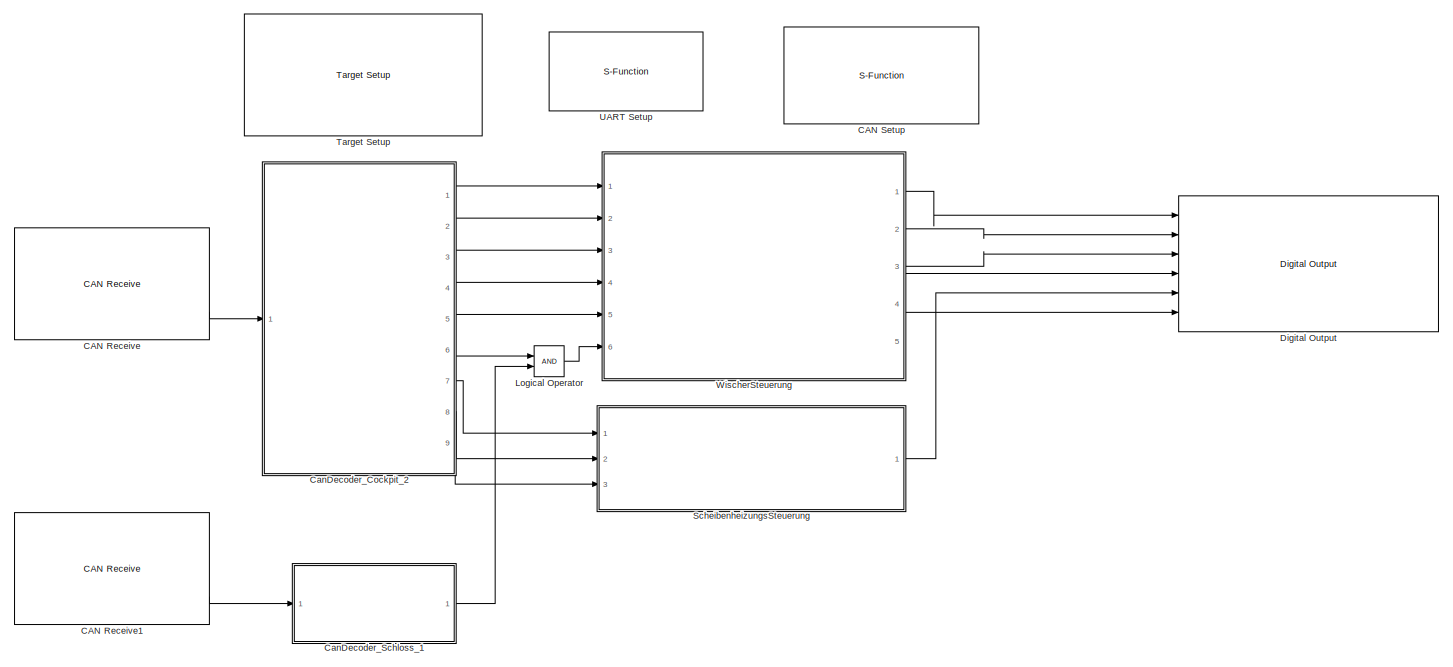
[diagram: root canvas - part 1/2, full width, middle band]
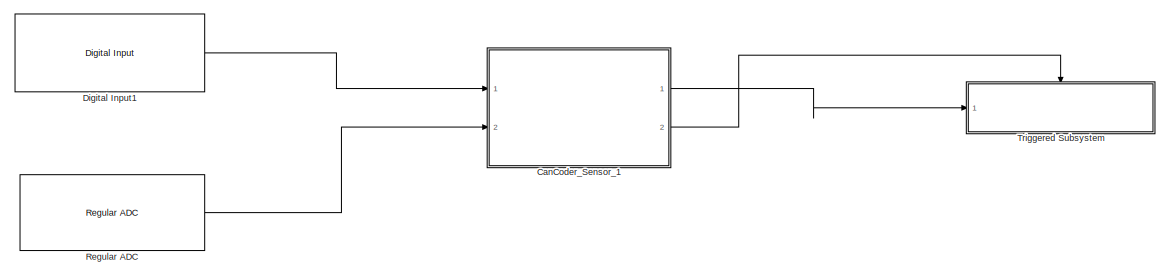
[diagram: root canvas - part 2/2, full width, bottom band]
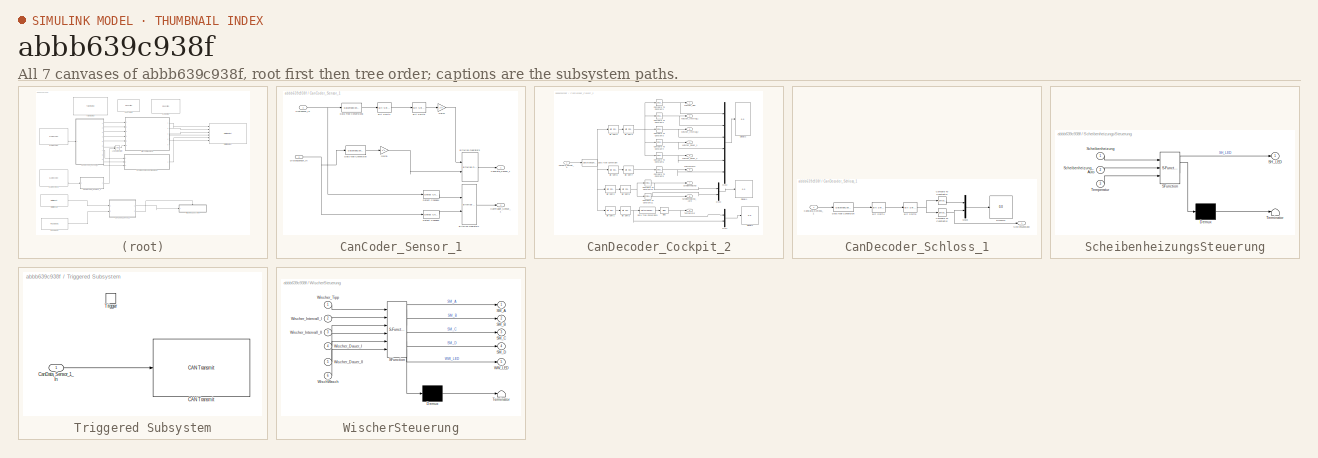
[diagram: thumbnail index - all 7 canvases of the model, root first then tree order]
MODEL slx_abbb639c938f
KIND model
CONFIG AbsTol = auto
CONFIG EnableMultiTasking = off
CONFIG FixedStep = auto
CONFIG MaxStep = auto
CONFIG MinStep = auto
CONFIG PreLoadFcn = waijung.modelPreload; % Required for working with Waijung Blockset. Do not remove.
CONFIG RelTol = 1e-3
CONFIG SampleTimeConstraint = Unconstrained
CONFIG Solver = FixedStepAuto
CONFIG SolverName = FixedStepAuto
CONFIG StartTime = 0.0
CONFIG StopTime = 10.0
BLOCK [Reference] CAN Receive  REF=stm32f4_canbus_lib/CAN Receive
  Ports = [0, 3]
  SourceBlock = stm32f4_canbus_lib/CAN Receive
  SourceType = stm32f4_can
BLOCK [Reference] CAN Receive1  REF=stm32f4_canbus_lib/CAN Receive
  Ports = [0, 3]
  SourceBlock = stm32f4_canbus_lib/CAN Receive
  SourceType = stm32f4_can
BLOCK [S-Function] CAN Setup
  EnableBusSupport = off
  FunctionName = stm32f4_can
  Parameters = conf,canmodule,0,inputarray,outputarray,'','',confstr,sampletime,sampletimestr,blockid
  Ports = []
  SFcnIsStateOwnerBlock = off
  SFunctionDeploymentMode = off
BLOCK [SubSystem] CanCoder_Sensor_1
  Ports = [2, 2]
  RequestExecContextInheritance = off
  Variant = off
BLOCK [Reference] CanCoder_Sensor_1/Bit Shift4  REF=hdlsllib/Logic and Bit
Operations/Bit Shift
  Ports = [1, 1]
  SourceBlock = hdlsllib/Logic and Bit\nOperations/Bit Shift
  SourceProductBaseCode = HD
  SourceProductName = HDL Coder
  SourceType = Bit Shift
BLOCK [Reference] CanCoder_Sensor_1/Bit Shift5  REF=hdlsllib/Logic and Bit
Operations/Bit Shift
  Ports = [1, 1]
  SourceBlock = hdlsllib/Logic and Bit\nOperations/Bit Shift
  SourceProductBaseCode = HD
  SourceProductName = HDL Coder
  SourceType = Bit Shift
BLOCK [Reference] CanCoder_Sensor_1/Bitwise Operator1  REF=simulink/Logic and Bit
Operations/Bitwise
Operator
  Ports = [2, 1]
  SourceBlock = simulink/Logic and Bit\nOperations/Bitwise\nOperator
  SourceProductBaseCode = SL
  SourceProductName = Simulink
  SourceType = Bitwise Operator
BLOCK [Reference] CanCoder_Sensor_1/Bitwise Operator3  REF=simulink/Logic and Bit
Operations/Bitwise
Operator
  Ports = [2, 1]
  SourceBlock = simulink/Logic and Bit\nOperations/Bitwise\nOperator
  SourceProductBaseCode = SL
  SourceProductName = Simulink
  SourceType = Bitwise Operator
BLOCK [Outport] CanCoder_Sensor_1/CanData_Sensor_1
  IconDisplay = Port number
BLOCK [Outport] CanCoder_Sensor_1/CanTrigger_Sensor_1
  IconDisplay = Port number
  Port = 2
BLOCK [DataTypeConversion] CanCoder_Sensor_1/Data Type Conversion
  OutDataTypeStr = uint16
  RndMeth = Floor
  SaturateOnIntegerOverflow = off
BLOCK [DataTypeConversion] CanCoder_Sensor_1/Data Type Conversion8
  OutDataTypeStr = uint16
  RndMeth = Floor
  SaturateOnIntegerOverflow = off
BLOCK [Reference] CanCoder_Sensor_1/Detect Change3  REF=simulink/Logic and Bit
Operations/Detect
Change
  Ports = [1, 1]
  SourceBlock = simulink/Logic and Bit\nOperations/Detect\nChange
  SourceProductBaseCode = SL
  SourceProductName = Simulink
  SourceType = Detect Change
BLOCK [Reference] CanCoder_Sensor_1/Detect Change4  REF=simulink/Logic and Bit
Operations/Detect
Change
  Ports = [1, 1]
  SourceBlock = simulink/Logic and Bit\nOperations/Detect\nChange
  SourceProductBaseCode = SL
  SourceProductName = Simulink
  SourceType = Detect Change
BLOCK [Inport] CanCoder_Sensor_1/Distanzsensor_In
  IconDisplay = Port number
  Port = 2
BLOCK [Gain] CanCoder_Sensor_1/Gain4
  Gain = 2^0
  OutDataTypeStr = uint16
  ParamDataTypeStr = Inherit: Inherit via internal rule
  SaturateOnIntegerOverflow = off
BLOCK [Gain] CanCoder_Sensor_1/Gain9
  Gain = 2^1
  OutDataTypeStr = uint16
  ParamDataTypeStr = Inherit: Inherit via internal rule
  SaturateOnIntegerOverflow = off
BLOCK [Inport] CanCoder_Sensor_1/Lichtsensor_In
  IconDisplay = Port number
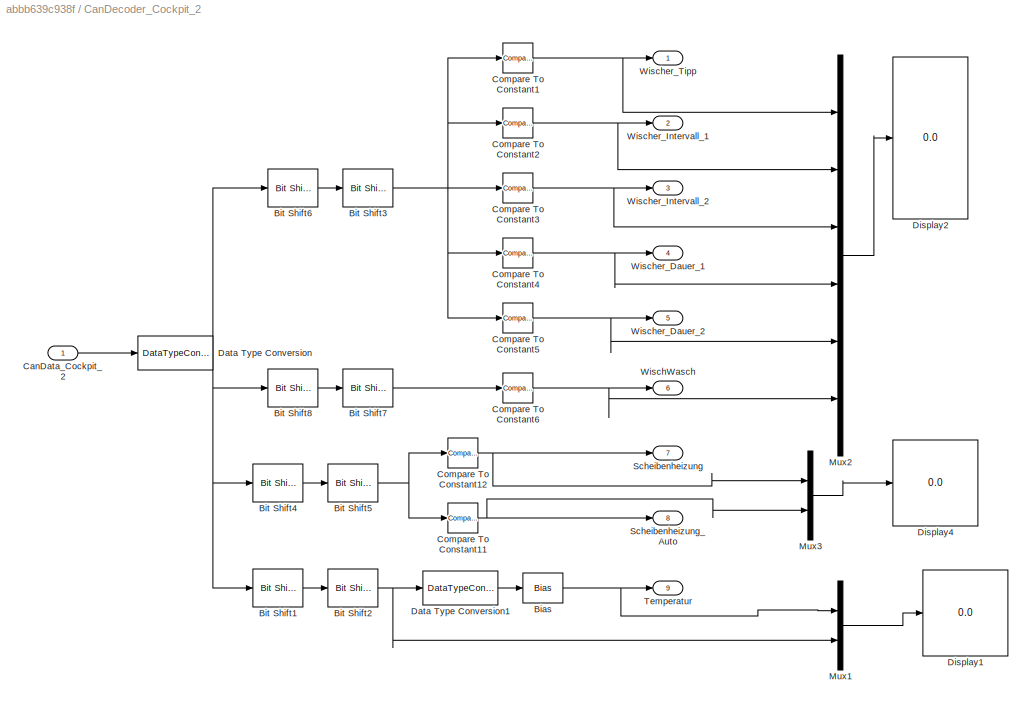
BLOCK [SubSystem] CanDecoder_Cockpit_2
  Ports = [1, 9]
  RequestExecContextInheritance = off
  Variant = off
BLOCK [Bias] CanDecoder_Cockpit_2/Bias
  Bias = -40
  SaturateOnIntegerOverflow = off
BLOCK [Reference] CanDecoder_Cockpit_2/Bit Shift1  REF=hdlsllib/Logic and Bit
Operations/Bit Shift
  Ports = [1, 1]
  SourceBlock = hdlsllib/Logic and Bit\nOperations/Bit Shift
  SourceProductBaseCode = HD
  SourceProductName = HDL Coder
  SourceType = Bit Shift
BLOCK [Reference] CanDecoder_Cockpit_2/Bit Shift2  REF=hdlsllib/Logic and Bit
Operations/Bit Shift
  Ports = [1, 1]
  SourceBlock = hdlsllib/Logic and Bit\nOperations/Bit Shift
  SourceProductBaseCode = HD
  SourceProductName = HDL Coder
  SourceType = Bit Shift
BLOCK [Reference] CanDecoder_Cockpit_2/Bit Shift3  REF=hdlsllib/Logic and Bit
Operations/Bit Shift
  Ports = [1, 1]
  SourceBlock = hdlsllib/Logic and Bit\nOperations/Bit Shift
  SourceProductBaseCode = HD
  SourceProductName = HDL Coder
  SourceType = Bit Shift
BLOCK [Reference] CanDecoder_Cockpit_2/Bit Shift4  REF=hdlsllib/Logic and Bit
Operations/Bit Shift
  Ports = [1, 1]
  SourceBlock = hdlsllib/Logic and Bit\nOperations/Bit Shift
  SourceProductBaseCode = HD
  SourceProductName = HDL Coder
  SourceType = Bit Shift
BLOCK [Reference] CanDecoder_Cockpit_2/Bit Shift5  REF=hdlsllib/Logic and Bit
Operations/Bit Shift
  Ports = [1, 1]
  SourceBlock = hdlsllib/Logic and Bit\nOperations/Bit Shift
  SourceProductBaseCode = HD
  SourceProductName = HDL Coder
  SourceType = Bit Shift
BLOCK [Reference] CanDecoder_Cockpit_2/Bit Shift6  REF=hdlsllib/Logic and Bit
Operations/Bit Shift
  Ports = [1, 1]
  SourceBlock = hdlsllib/Logic and Bit\nOperations/Bit Shift
  SourceProductBaseCode = HD
  SourceProductName = HDL Coder
  SourceType = Bit Shift
BLOCK [Reference] CanDecoder_Cockpit_2/Bit Shift7  REF=hdlsllib/Logic and Bit
Operations/Bit Shift
  Ports = [1, 1]
  SourceBlock = hdlsllib/Logic and Bit\nOperations/Bit Shift
  SourceProductBaseCode = HD
  SourceProductName = HDL Coder
  SourceType = Bit Shift
BLOCK [Reference] CanDecoder_Cockpit_2/Bit Shift8  REF=hdlsllib/Logic and Bit
Operations/Bit Shift
  Ports = [1, 1]
  SourceBlock = hdlsllib/Logic and Bit\nOperations/Bit Shift
  SourceProductBaseCode = HD
  SourceProductName = HDL Coder
  SourceType = Bit Shift
BLOCK [Inport] CanDecoder_Cockpit_2/CanData_Cockpit_2
  IconDisplay = Port number
BLOCK [Reference] CanDecoder_Cockpit_2/Compare To Constant1  REF=simulink/Logic and Bit
Operations/Compare
To Constant
  Ports = [1, 1]
  SourceBlock = simulink/Logic and Bit\nOperations/Compare\nTo Constant
  SourceProductBaseCode = SL
  SourceProductName = Simulink
  SourceType = Compare To Constant
BLOCK [Reference] CanDecoder_Cockpit_2/Compare To Constant11  REF=simulink/Logic and Bit
Operations/Compare
To Constant
  Ports = [1, 1]
  SourceBlock = simulink/Logic and Bit\nOperations/Compare\nTo Constant
  SourceProductBaseCode = SL
  SourceProductName = Simulink
  SourceType = Compare To Constant
BLOCK [Reference] CanDecoder_Cockpit_2/Compare To Constant12  REF=simulink/Logic and Bit
Operations/Compare
To Constant
  Ports = [1, 1]
  SourceBlock = simulink/Logic and Bit\nOperations/Compare\nTo Constant
  SourceProductBaseCode = SL
  SourceProductName = Simulink
  SourceType = Compare To Constant
BLOCK [Reference] CanDecoder_Cockpit_2/Compare To Constant2  REF=simulink/Logic and Bit
Operations/Compare
To Constant
  Ports = [1, 1]
  SourceBlock = simulink/Logic and Bit\nOperations/Compare\nTo Constant
  SourceProductBaseCode = SL
  SourceProductName = Simulink
  SourceType = Compare To Constant
BLOCK [Reference] CanDecoder_Cockpit_2/Compare To Constant3  REF=simulink/Logic and Bit
Operations/Compare
To Constant
  Ports = [1, 1]
  SourceBlock = simulink/Logic and Bit\nOperations/Compare\nTo Constant
  SourceProductBaseCode = SL
  SourceProductName = Simulink
  SourceType = Compare To Constant
BLOCK [Reference] CanDecoder_Cockpit_2/Compare To Constant4  REF=simulink/Logic and Bit
Operations/Compare
To Constant
  Ports = [1, 1]
  SourceBlock = simulink/Logic and Bit\nOperations/Compare\nTo Constant
  SourceProductBaseCode = SL
  SourceProductName = Simulink
  SourceType = Compare To Constant
BLOCK [Reference] CanDecoder_Cockpit_2/Compare To Constant5  REF=simulink/Logic and Bit
Operations/Compare
To Constant
  Ports = [1, 1]
  SourceBlock = simulink/Logic and Bit\nOperations/Compare\nTo Constant
  SourceProductBaseCode = SL
  SourceProductName = Simulink
  SourceType = Compare To Constant
BLOCK [Reference] CanDecoder_Cockpit_2/Compare To Constant6  REF=simulink/Logic and Bit
Operations/Compare
To Constant
  Ports = [1, 1]
  SourceBlock = simulink/Logic and Bit\nOperations/Compare\nTo Constant
  SourceProductBaseCode = SL
  SourceProductName = Simulink
  SourceType = Compare To Constant
BLOCK [DataTypeConversion] CanDecoder_Cockpit_2/Data Type Conversion
  OutDataTypeStr = int16
  RndMeth = Floor
  SaturateOnIntegerOverflow = off
BLOCK [DataTypeConversion] CanDecoder_Cockpit_2/Data Type Conversion1
  OutDataTypeStr = int16
  RndMeth = Floor
  SaturateOnIntegerOverflow = off
BLOCK [Display] CanDecoder_Cockpit_2/Display1
  Decimation = 1
  Format = long
  Ports = [1]
BLOCK [Display] CanDecoder_Cockpit_2/Display2
  Decimation = 1
  Format = long
  Ports = [1]
BLOCK [Display] CanDecoder_Cockpit_2/Display4
  Decimation = 1
  Format = long
  Ports = [1]
BLOCK [Mux] CanDecoder_Cockpit_2/Mux1
  DisplayOption = bar
  Inputs = 2
  Ports = [2, 1]
BLOCK [Mux] CanDecoder_Cockpit_2/Mux2
  DisplayOption = bar
  Inputs = 6
  Ports = [6, 1]
BLOCK [Mux] CanDecoder_Cockpit_2/Mux3
  DisplayOption = bar
  Inputs = 2
  Ports = [2, 1]
BLOCK [Outport] CanDecoder_Cockpit_2/Scheibenheizung
  IconDisplay = Port number
  Port = 7
BLOCK [Outport] CanDecoder_Cockpit_2/Scheibenheizung_Auto
  IconDisplay = Port number
  Port = 8
BLOCK [Outport] CanDecoder_Cockpit_2/Temperatur
  IconDisplay = Port number
  Port = 9
BLOCK [Outport] CanDecoder_Cockpit_2/WischWasch
  IconDisplay = Port number
  Port = 6
BLOCK [Outport] CanDecoder_Cockpit_2/Wischer_Dauer_1
  IconDisplay = Port number
  Port = 4
BLOCK [Outport] CanDecoder_Cockpit_2/Wischer_Dauer_2
  IconDisplay = Port number
  Port = 5
BLOCK [Outport] CanDecoder_Cockpit_2/Wischer_Intervall_1
  IconDisplay = Port number
  Port = 2
BLOCK [Outport] CanDecoder_Cockpit_2/Wischer_Intervall_2
  IconDisplay = Port number
  Port = 3
BLOCK [Outport] CanDecoder_Cockpit_2/Wischer_Tipp
  IconDisplay = Port number
BLOCK [SubSystem] CanDecoder_Schloss_1
  Ports = [1, 1]
  RequestExecContextInheritance = off
  Variant = off
BLOCK [Reference] CanDecoder_Schloss_1/Bit Shift4  REF=hdlsllib/Logic and Bit
Operations/Bit Shift
  Ports = [1, 1]
  SourceBlock = hdlsllib/Logic and Bit\nOperations/Bit Shift
  SourceProductBaseCode = HD
  SourceProductName = HDL Coder
  SourceType = Bit Shift
BLOCK [Reference] CanDecoder_Schloss_1/Bit Shift5  REF=hdlsllib/Logic and Bit
Operations/Bit Shift
  Ports = [1, 1]
  SourceBlock = hdlsllib/Logic and Bit\nOperations/Bit Shift
  SourceProductBaseCode = HD
  SourceProductName = HDL Coder
  SourceType = Bit Shift
BLOCK [Inport] CanDecoder_Schloss_1/CanData_Schloss_1
  IconDisplay = Port number
BLOCK [Reference] CanDecoder_Schloss_1/Compare To Constant11  REF=simulink/Logic and Bit
Operations/Compare
To Constant
  Ports = [1, 1]
  SourceBlock = simulink/Logic and Bit\nOperations/Compare\nTo Constant
  SourceProductBaseCode = SL
  SourceProductName = Simulink
  SourceType = Compare To Constant
BLOCK [Reference] CanDecoder_Schloss_1/Compare To Constant12  REF=simulink/Logic and Bit
Operations/Compare
To Constant
  Ports = [1, 1]
  SourceBlock = simulink/Logic and Bit\nOperations/Compare\nTo Constant
  SourceProductBaseCode = SL
  SourceProductName = Simulink
  SourceType = Compare To Constant
BLOCK [DataTypeConversion] CanDecoder_Schloss_1/Data Type Conversion
  OutDataTypeStr = uint8
  RndMeth = Floor
  SaturateOnIntegerOverflow = off
BLOCK [Display] CanDecoder_Schloss_1/Display4
  Decimation = 1
  Ports = [1]
BLOCK [Mux] CanDecoder_Schloss_1/Mux3
  DisplayOption = bar
  Inputs = 2
  Ports = [2, 1]
BLOCK [Outport] CanDecoder_Schloss_1/SchliessZustand
  IconDisplay = Port number
BLOCK [Reference] Digital Input1  REF=stm32f4_io_lib/Digital Input
  Ports = [0, 1]
  SourceBlock = stm32f4_io_lib/Digital Input
  SourceType = stm32f4_digital_input
BLOCK [Reference] Digital Output  REF=stm32f4_io_lib/Digital Output
  Ports = [6]
  SourceBlock = stm32f4_io_lib/Digital Output
  SourceType = stm32f4_digital_output
BLOCK [Logic] Logical Operator
  AllPortsSameDT = off
  OutDataTypeStr = boolean
  Ports = [2, 1]
BLOCK [Reference] Regular ADC  REF=stm32f4_adc_lib/Regular ADC
  Ports = [0, 1]
  SourceBlock = stm32f4_adc_lib/Regular ADC
  SourceType = stm32f4_regular_adc
BLOCK [SubSystem] ScheibenheizungsSteuerung
  ErrorFcn = Stateflow.Translate.translate
  PermitHierarchicalResolution = ExplicitOnly
  Ports = [3, 1]
  RequestExecContextInheritance = off
  SFBlockType = Chart
  TreatAsAtomicUnit = on
  Variant = off
BLOCK [Demux] ScheibenheizungsSteuerung/ Demux 
  Outputs = 1
  Ports = [1, 1]
BLOCK [S-Function] ScheibenheizungsSteuerung/ SFunction 
  EnableBusSupport = on
  FunctionName = sf_sfun
  PortCounts = [3 2]
  Ports = [3, 2]
  SFcnIsStateOwnerBlock = off
  SFunctionDeploymentMode = off
  Tag = Stateflow S-Function Wischer_Sensorbox 6
BLOCK [Terminator] ScheibenheizungsSteuerung/ Terminator 
BLOCK [Outport] ScheibenheizungsSteuerung/SH_LED
  IconDisplay = Port number
BLOCK [Inport] ScheibenheizungsSteuerung/Scheibenheizung
  IconDisplay = Port number
BLOCK [Inport] ScheibenheizungsSteuerung/Scheibenheizung_Auto
  IconDisplay = Port number
  Port = 2
BLOCK [Inport] ScheibenheizungsSteuerung/Temperatur
  IconDisplay = Port number
  Port = 3
BLOCK [Reference] Target Setup  REF=stm32f4_device_config_lib/Target Setup
  Ports = []
  Priority = 100
  SourceBlock = stm32f4_device_config_lib/Target Setup
  SourceType = stm32f4_target_setup
BLOCK [SubSystem] Triggered Subsystem
  Ports = [1, 0, 0, 1]
  RequestExecContextInheritance = off
  TreatAsAtomicUnit = on
  Variant = off
BLOCK [Reference] Triggered Subsystem/CAN Transmit  REF=stm32f4_canbus_lib/CAN Transmit
  Ports = [1]
  SourceBlock = stm32f4_canbus_lib/CAN Transmit
  SourceType = stm32f4_can
BLOCK [Inport] Triggered Subsystem/CanData_Sensor_1_In
  IconDisplay = Port number
BLOCK [TriggerPort] Triggered Subsystem/Trigger
  Ports = []
  StatesWhenEnabling = held
  VariantControl = Variant
BLOCK [S-Function] UART Setup
  EnableBusSupport = off
  FunctionName = stm32f4_usart
  Parameters = configuration,uartmodule,transfer,baudrate,inputtype,outputtype,confstr,binheaderarray,binterminatorarray,asciiheader,asciiterminator,bindatalength,packetmode,varname,sampletime,sampletimestr,blockid
  Ports = []
  Priority = 1
  SFcnIsStateOwnerBlock = off
  SFunctionDeploymentMode = off
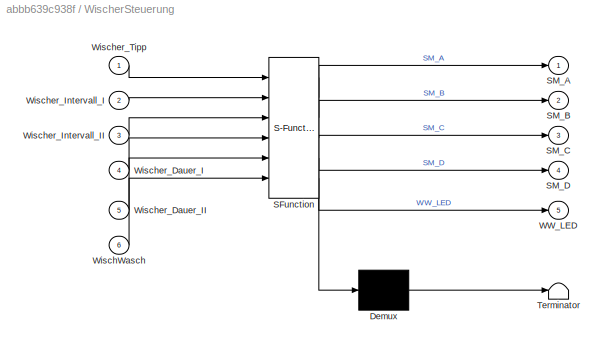
BLOCK [SubSystem] WischerSteuerung
  ErrorFcn = Stateflow.Translate.translate
  PermitHierarchicalResolution = ExplicitOnly
  Ports = [6, 5]
  RequestExecContextInheritance = off
  SFBlockType = Chart
  TreatAsAtomicUnit = on
  Variant = off
BLOCK [Demux] WischerSteuerung/ Demux 
  Outputs = 1
  Ports = [1, 1]
BLOCK [S-Function] WischerSteuerung/ SFunction 
  EnableBusSupport = on
  FunctionName = sf_sfun
  PortCounts = [6 6]
  Ports = [6, 6]
  SFcnIsStateOwnerBlock = off
  SFunctionDeploymentMode = off
  Tag = Stateflow S-Function Wischer_Sensorbox 5
BLOCK [Terminator] WischerSteuerung/ Terminator 
BLOCK [Outport] WischerSteuerung/SM_A
  IconDisplay = Port number
BLOCK [Outport] WischerSteuerung/SM_B
  IconDisplay = Port number
  Port = 2
BLOCK [Outport] WischerSteuerung/SM_C
  IconDisplay = Port number
  Port = 3
BLOCK [Outport] WischerSteuerung/SM_D
  IconDisplay = Port number
  Port = 4
BLOCK [Outport] WischerSteuerung/WW_LED
  IconDisplay = Port number
  Port = 5
BLOCK [Inport] WischerSteuerung/WischWasch
  IconDisplay = Port number
  Port = 6
BLOCK [Inport] WischerSteuerung/Wischer_Dauer_I
  IconDisplay = Port number
  Port = 4
BLOCK [Inport] WischerSteuerung/Wischer_Dauer_II
  IconDisplay = Port number
  Port = 5
BLOCK [Inport] WischerSteuerung/Wischer_Intervall_I
  IconDisplay = Port number
  Port = 2
BLOCK [Inport] WischerSteuerung/Wischer_Intervall_II
  IconDisplay = Port number
  Port = 3
BLOCK [Inport] WischerSteuerung/Wischer_Tipp
  IconDisplay = Port number
LINE CAN Receive1:3 -> CanDecoder_Schloss_1:1
LINE CAN Receive:3 -> CanDecoder_Cockpit_2:1
LINE CanCoder_Sensor_1/Bit Shift4:1 -> CanCoder_Sensor_1/Bit Shift5:1
LINE CanCoder_Sensor_1/Bit Shift5:1 -> CanCoder_Sensor_1/Gain4:1
LINE CanCoder_Sensor_1/Bitwise Operator1:1 -> CanCoder_Sensor_1/CanTrigger_Sensor_1:1
LINE CanCoder_Sensor_1/Bitwise Operator3:1 -> CanCoder_Sensor_1/CanData_Sensor_1:1
LINE CanCoder_Sensor_1/Data Type Conversion8:1 -> CanCoder_Sensor_1/Bit Shift4:1
LINE CanCoder_Sensor_1/Data Type Conversion:1 -> CanCoder_Sensor_1/Gain9:1
LINE CanCoder_Sensor_1/Detect Change3:1 -> CanCoder_Sensor_1/Bitwise Operator1:2
LINE CanCoder_Sensor_1/Detect Change4:1 -> CanCoder_Sensor_1/Bitwise Operator1:1
NET CanCoder_Sensor_1/Distanzsensor_In:1 -> CanCoder_Sensor_1/Data Type Conversion:1, CanCoder_Sensor_1/Detect Change3:1
LINE CanCoder_Sensor_1/Gain4:1 -> CanCoder_Sensor_1/Bitwise Operator3:1
LINE CanCoder_Sensor_1/Gain9:1 -> CanCoder_Sensor_1/Bitwise Operator3:2
NET CanCoder_Sensor_1/Lichtsensor_In:1 -> CanCoder_Sensor_1/Data Type Conversion8:1, CanCoder_Sensor_1/Detect Change4:1
LINE CanCoder_Sensor_1:1 -> Triggered Subsystem:1
LINE CanCoder_Sensor_1:2 -> Triggered Subsystem:trigger
NET CanDecoder_Cockpit_2/Bias:1 -> CanDecoder_Cockpit_2/Mux1:1, CanDecoder_Cockpit_2/Temperatur:1
LINE CanDecoder_Cockpit_2/Bit Shift1:1 -> CanDecoder_Cockpit_2/Bit Shift2:1
NET CanDecoder_Cockpit_2/Bit Shift2:1 -> CanDecoder_Cockpit_2/Data Type Conversion1:1, CanDecoder_Cockpit_2/Mux1:2
NET CanDecoder_Cockpit_2/Bit Shift3:1 -> CanDecoder_Cockpit_2/Compare To Constant1:1, CanDecoder_Cockpit_2/Compare To Constant2:1, CanDecoder_Cockpit_2/Compare To Constant3:1, CanDecoder_Cockpit_2/Compare To Constant4:1, CanDecoder_Cockpit_2/Compare To Constant5:1
LINE CanDecoder_Cockpit_2/Bit Shift4:1 -> CanDecoder_Cockpit_2/Bit Shift5:1
NET CanDecoder_Cockpit_2/Bit Shift5:1 -> CanDecoder_Cockpit_2/Compare To Constant11:1, CanDecoder_Cockpit_2/Compare To Constant12:1
LINE CanDecoder_Cockpit_2/Bit Shift6:1 -> CanDecoder_Cockpit_2/Bit Shift3:1
LINE CanDecoder_Cockpit_2/Bit Shift7:1 -> CanDecoder_Cockpit_2/Compare To Constant6:1
LINE CanDecoder_Cockpit_2/Bit Shift8:1 -> CanDecoder_Cockpit_2/Bit Shift7:1
LINE CanDecoder_Cockpit_2/CanData_Cockpit_2:1 -> CanDecoder_Cockpit_2/Data Type Conversion:1
NET CanDecoder_Cockpit_2/Compare To Constant11:1 -> CanDecoder_Cockpit_2/Mux3:2, CanDecoder_Cockpit_2/Scheibenheizung_Auto:1
NET CanDecoder_Cockpit_2/Compare To Constant12:1 -> CanDecoder_Cockpit_2/Mux3:1, CanDecoder_Cockpit_2/Scheibenheizung:1
NET CanDecoder_Cockpit_2/Compare To Constant1:1 -> CanDecoder_Cockpit_2/Mux2:1, CanDecoder_Cockpit_2/Wischer_Tipp:1
NET CanDecoder_Cockpit_2/Compare To Constant2:1 -> CanDecoder_Cockpit_2/Mux2:2, CanDecoder_Cockpit_2/Wischer_Intervall_1:1
NET CanDecoder_Cockpit_2/Compare To Constant3:1 -> CanDecoder_Cockpit_2/Mux2:3, CanDecoder_Cockpit_2/Wischer_Intervall_2:1
NET CanDecoder_Cockpit_2/Compare To Constant4:1 -> CanDecoder_Cockpit_2/Mux2:4, CanDecoder_Cockpit_2/Wischer_Dauer_1:1
NET CanDecoder_Cockpit_2/Compare To Constant5:1 -> CanDecoder_Cockpit_2/Mux2:5, CanDecoder_Cockpit_2/Wischer_Dauer_2:1
NET CanDecoder_Cockpit_2/Compare To Constant6:1 -> CanDecoder_Cockpit_2/Mux2:6, CanDecoder_Cockpit_2/WischWasch:1
LINE CanDecoder_Cockpit_2/Data Type Conversion1:1 -> CanDecoder_Cockpit_2/Bias:1
NET CanDecoder_Cockpit_2/Data Type Conversion:1 -> CanDecoder_Cockpit_2/Bit Shift1:1, CanDecoder_Cockpit_2/Bit Shift4:1, CanDecoder_Cockpit_2/Bit Shift6:1, CanDecoder_Cockpit_2/Bit Shift8:1
LINE CanDecoder_Cockpit_2/Mux1:1 -> CanDecoder_Cockpit_2/Display1:1
LINE CanDecoder_Cockpit_2/Mux2:1 -> CanDecoder_Cockpit_2/Display2:1
LINE CanDecoder_Cockpit_2/Mux3:1 -> CanDecoder_Cockpit_2/Display4:1
LINE CanDecoder_Cockpit_2:1 -> WischerSteuerung:1
LINE CanDecoder_Cockpit_2:2 -> WischerSteuerung:2
LINE CanDecoder_Cockpit_2:3 -> WischerSteuerung:3
LINE CanDecoder_Cockpit_2:4 -> WischerSteuerung:4
LINE CanDecoder_Cockpit_2:5 -> WischerSteuerung:5
LINE CanDecoder_Cockpit_2:6 -> Logical Operator:1
LINE CanDecoder_Cockpit_2:7 -> ScheibenheizungsSteuerung:1
LINE CanDecoder_Cockpit_2:8 -> ScheibenheizungsSteuerung:2
LINE CanDecoder_Cockpit_2:9 -> ScheibenheizungsSteuerung:3
LINE CanDecoder_Schloss_1/Bit Shift4:1 -> CanDecoder_Schloss_1/Bit Shift5:1
NET CanDecoder_Schloss_1/Bit Shift5:1 -> CanDecoder_Schloss_1/Compare To Constant11:1, CanDecoder_Schloss_1/Compare To Constant12:1
LINE CanDecoder_Schloss_1/CanData_Schloss_1:1 -> CanDecoder_Schloss_1/Data Type Conversion:1
LINE CanDecoder_Schloss_1/Compare To Constant11:1 -> CanDecoder_Schloss_1/Mux3:1
NET CanDecoder_Schloss_1/Compare To Constant12:1 -> CanDecoder_Schloss_1/Mux3:2, CanDecoder_Schloss_1/SchliessZustand:1
LINE CanDecoder_Schloss_1/Data Type Conversion:1 -> CanDecoder_Schloss_1/Bit Shift4:1
LINE CanDecoder_Schloss_1/Mux3:1 -> CanDecoder_Schloss_1/Display4:1
LINE CanDecoder_Schloss_1:1 -> Logical Operator:2
LINE Digital Input1:1 -> CanCoder_Sensor_1:1
LINE Logical Operator:1 -> WischerSteuerung:6
LINE Regular ADC:1 -> CanCoder_Sensor_1:2
LINE ScheibenheizungsSteuerung:1 -> Digital Output:5
LINE Triggered Subsystem/CanData_Sensor_1_In:1 -> Triggered Subsystem/CAN Transmit:1
LINE WischerSteuerung:1 -> Digital Output:1
LINE WischerSteuerung:2 -> Digital Output:2
LINE WischerSteuerung:3 -> Digital Output:3
LINE WischerSteuerung:4 -> Digital Output:4
LINE WischerSteuerung:5 -> Digital Output:6
note: NET lines group one-source signal fan-out (src -> all destinations, sorted); 1:1 wires keep LINE
CHART WischerSteuerung states=46 transitions=61
  STATE_LABEL 'Wischer'
  STATE_LABEL 'Stufe_0_\nentry:\nSM_A=false\nSM_B=false\nSM_C=false\nSM_D=false\nWW_LED=false\nSteps=0\nWischWaschCount=0\n'
  STATE_LABEL 'Wischer_Vor'
  STATE_LABEL 'Phase4\nentry:\nSM_A=false\nSM_B=false\nSM_C=false\nSM_D=true\nWW_LED=false\nSteps = Steps + 1;\n'
  STATE_LABEL 'Phase1\nentry:\nSM_A=true\nSM_B=false\nSM_C=false\nSM_D=false\nWW_LED=false\nSteps = Steps + 1;'
  STATE_LABEL 'Phase2\nentry:\nSM_A=false\nSM_B=true\nSM_C=false\nSM_D=false\nWW_LED=false\nSteps = Steps+1;\n'
  STATE_LABEL 'Phase3\nentry:\nSM_A=false\nSM_B=false\nSM_C=true\nSM_D=false\nWW_LED=false\nSteps = Steps+1;'
  STATE_LABEL 'after(StepTime,sec)'
  STATE_LABEL 'after(StepTime,sec)'
  STATE_LABEL 'after(StepTime,sec)'
  STATE_LABEL 'after(StepTime,sec)'
  STATE_LABEL 'TIPP\nentry: StepTime=0.0303;\n StepTime1=1;\n BreakTime=1;\n'
  STATE_LABEL 'INTERVALL_LANGSAM\nentry: StepTime=0.0303;\n StepTime1=1;\n BreakTime=4;\n'
  STATE_LABEL 'INTERVALL_LANGSAM1\nentry: StepTime=0.0303;\n StepTime1=1;\n BreakTime=2;\n'
  STATE_LABEL 'Warte'
  STATE_LABEL 'Wischer_Rueck'
  STATE_LABEL 'Phase4\nentry:\nSM_A=false\nSM_B=false\nSM_C=false\nSM_D=true\nWW_LED=false\nSteps = Steps+1;\n'
  STATE_LABEL 'Phase1\nentry:\nSM_A=true\nSM_B=false\nSM_C=false\nSM_D=false\nWW_LED=false\nSteps = Steps+1;'
  STATE_LABEL 'Phase2\nentry:\nSM_A=false\nSM_B=true\nSM_C=false\nSM_D=false\nWW_LED=false\nSteps = Steps+1;\n'
  STATE_LABEL 'Phase3\nentry:\nSM_A=false\nSM_B=false\nSM_C=true\nSM_D=false\nWW_LED=false\nSteps = Steps+1;'
  STATE_LABEL 'after(StepTime,sec)'
  STATE_LABEL 'after(StepTime,sec)'
  STATE_LABEL 'after(StepTime,sec)'
  STATE_LABEL 'after(StepTime,sec)'
  STATE_LABEL '[Wischer_Tipp==1]'
  STATE_LABEL '[Wischer_Intervall_I==1]'
  STATE_LABEL '[Wischer_Intervall_II==1]'
  STATE_LABEL '[Steps==66]'
  STATE_LABEL 'after(BreakTime,sec)'
  STATE_LABEL '[Steps==33]'
  STATE_LABEL 'Stufe_0_\nentry:\nSM_A=false\nSM_B=false\nSM_C=false\nSM_D=false\nWW_LED=false\nSteps=0\nWischWaschCount=0\n'
  STATE_LABEL 'Wischer_Vor'
  STATE_LABEL 'Phase4\nentry:\nSM_A=false\nSM_B=false\nSM_C=false\nSM_D=true\nWW_LED=false\nSteps = Steps + 1;\n'
  STATE_LABEL 'Phase1\nentry:\nSM_A=true\nSM_B=false\nSM_C=false\nSM_D=false\nWW_LED=false\nSteps = Steps + 1;'
  STATE_LABEL 'Phase2\nentry:\nSM_A=false\nSM_B=true\nSM_C=false\nSM_D=false\nWW_LED=false\nSteps = Steps+1;\n'
  STATE_LABEL 'Phase3\nentry:\nSM_A=false\nSM_B=false\nSM_C=true\nSM_D=false\nWW_LED=false\nSteps = Steps+1;'
  STATE_LABEL 'after(StepTime,sec)'
  STATE_LABEL 'after(StepTime,sec)'
  STATE_LABEL 'after(StepTime,sec)'
  STATE_LABEL 'after(StepTime,sec)'
CHART ScheibenheizungsSteuerung states=6 transitions=9
  STATE_LABEL 'MANUELL'
  STATE_LABEL 'ON\nentry:SH_LED=true'
  STATE_LABEL 'OFF\nentry:SH_LED=false'
  STATE_LABEL '[after(30,sec) || Scheibenheizung==0]'
  STATE_LABEL '[Scheibenheizung==1]'
  STATE_LABEL 'ON\nentry:SH_LED=true'
  STATE_LABEL 'OFF\nentry:SH_LED=false'
  STATE_LABEL 'AUTO'
  STATE_LABEL 'ON\nentry:SH_LED=true'
  STATE_LABEL 'OFF\nentry:SH_LED=false'
  STATE_LABEL '[after(30,sec) || Temperatur>=2]'
  STATE_LABEL '[Temperatur<2]'
  STATE_LABEL 'ON\nentry:SH_LED=true'
  STATE_LABEL 'OFF\nentry:SH_LED=false'
